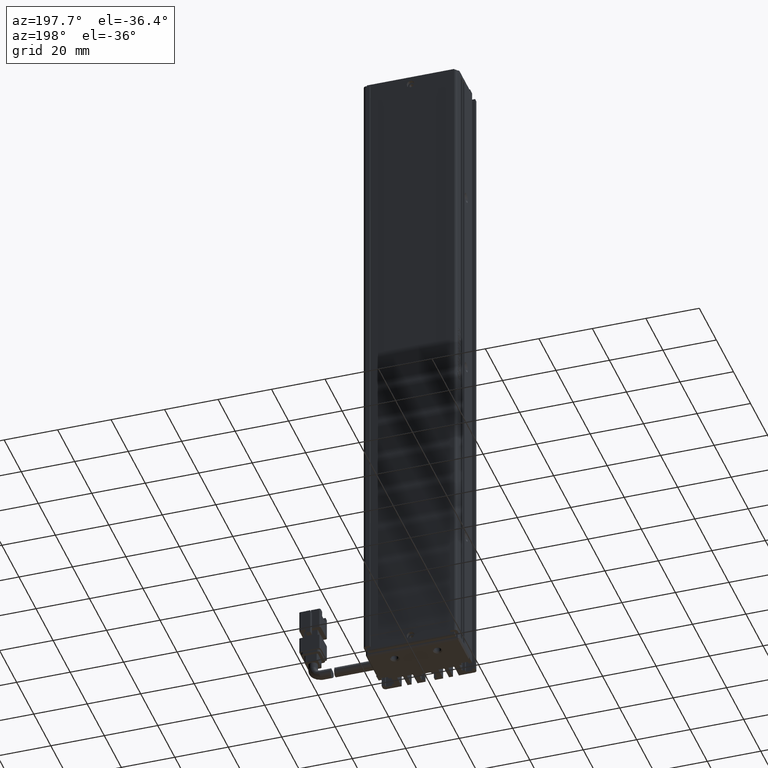
[diagram: clean part render]
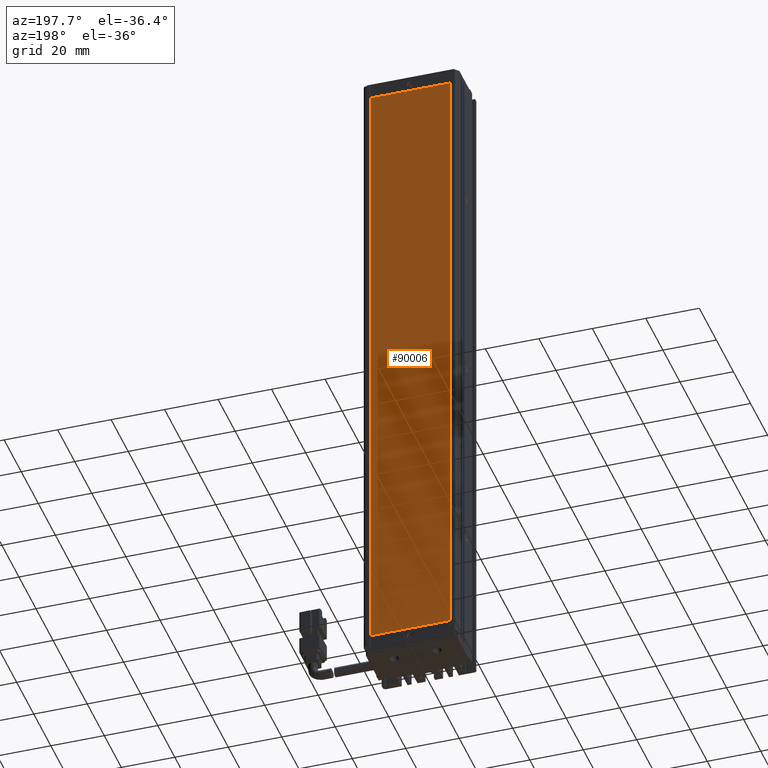
[diagram: same view with one face highlighted and labeled with its STEP entity id]
A machine part, auxiliary view. The second image highlights one B-rep face of the part: STEP entity #90006.
In plain terms, the highlighted planar face has unit normal (0, 1, 0).
Its self-contained STEP definition (entity closure, byte-faithful):
#4326 = DIRECTION ( 'NONE',  ( -1.000000000000000000, 0.0000000000000000000, 0.0000000000000000000 ) ) ;
#5117 = CARTESIAN_POINT ( 'NONE',  ( 25.92537974683542500, 34.29073232304837400, -233.9999728042264200 ) ) ;
#5847 = PLANE ( 'NONE',  #59853 ) ;
#6215 = LINE ( 'NONE', #73059, #31879 ) ;
#9380 = VECTOR ( 'NONE', #4326, 1000.000000000000000 ) ;
#9894 = VERTEX_POINT ( 'NONE', #5117 ) ;
#10557 = ORIENTED_EDGE ( 'NONE', *, *, #24998, .T. ) ;
#10670 = CARTESIAN_POINT ( 'NONE',  ( 25.92537974683542500, 34.29073232304837400, -233.9999728042264200 ) ) ;
#12307 = CARTESIAN_POINT ( 'NONE',  ( 55.84492731756621000, 34.29073232304837400, -115.0000000000000000 ) ) ;
#18924 = VECTOR ( 'NONE', #93599, 1000.000000000000000 ) ;
#19586 = VERTEX_POINT ( 'NONE', #94612 ) ;
#21807 = CARTESIAN_POINT ( 'NONE',  ( 25.92537974683545300, 34.29073232304837400, 4.000027195773581600 ) ) ;
#22882 = VERTEX_POINT ( 'NONE', #62651 ) ;
#22998 = EDGE_CURVE ( 'NONE', #26770, #22882, #40048, .T. ) ;
#24998 = EDGE_CURVE ( 'NONE', #75483, #19586, #61475, .T. ) ;
#26770 = VERTEX_POINT ( 'NONE', #12307 ) ;
#28595 = CARTESIAN_POINT ( 'NONE',  ( 3.278282036302795100E-032, 34.29073232304837400, 4.549530247398007300E-048 ) ) ;
#31879 = VECTOR ( 'NONE', #87457, 1000.000000000000000 ) ;
#32245 = LINE ( 'NONE', #10670, #33386 ) ;
#33386 = VECTOR ( 'NONE', #78217, 1000.000000000000000 ) ;
#40048 = LINE ( 'NONE', #78915, #18924 ) ;
#41602 = VECTOR ( 'NONE', #81254, 1000.000000000000000 ) ;
#50255 = DIRECTION ( 'NONE',  ( 0.0000000000000000000, -0.0000000000000000000, 1.000000000000000000 ) ) ;
#55934 = CARTESIAN_POINT ( 'NONE',  ( 55.92537974683542500, 34.29073232304837400, -233.9999728042264200 ) ) ;
#59853 = AXIS2_PLACEMENT_3D ( 'NONE', #28595, #72691, #50255 ) ;
#61298 = CARTESIAN_POINT ( 'NONE',  ( 25.92537974683545300, 34.29073232304837400, 4.000027195773581600 ) ) ;
#61475 = LINE ( 'NONE', #21807, #41602 ) ;
#62651 = CARTESIAN_POINT ( 'NONE',  ( 55.92537974683542500, 34.29073232304837400, -233.9999728042264200 ) ) ;
#64287 = LINE ( 'NONE', #55934, #9380 ) ;
#66783 = EDGE_CURVE ( 'NONE', #22882, #9894, #64287, .T. ) ;
#69000 = ORIENTED_EDGE ( 'NONE', *, *, #66783, .T. ) ;
#72215 = ORIENTED_EDGE ( 'NONE', *, *, #88406, .T. ) ;
#72691 = DIRECTION ( 'NONE',  ( 0.0000000000000000000, 1.000000000000000000, 0.0000000000000000000 ) ) ;
#73059 = CARTESIAN_POINT ( 'NONE',  ( 55.92537974683545300, 34.29073232304837400, 4.000027195773581600 ) ) ;
#75483 = VERTEX_POINT ( 'NONE', #61298 ) ;
#78217 = DIRECTION ( 'NONE',  ( 1.166200656118862000E-016, 0.0000000000000000000, 1.000000000000000000 ) ) ;
#78915 = CARTESIAN_POINT ( 'NONE',  ( 55.84492731756621000, 34.29073232304837400, -115.0000000000000000 ) ) ;
#81254 = DIRECTION ( 'NONE',  ( 1.000000000000000000, 0.0000000000000000000, 0.0000000000000000000 ) ) ;
#84321 = EDGE_LOOP ( 'NONE', ( #93131, #96663, #69000, #72215, #10557 ) ) ;
#87457 = DIRECTION ( 'NONE',  ( -0.0006760705251825751300, 0.0000000000000000000, -0.9999997714642964200 ) ) ;
#88062 = EDGE_CURVE ( 'NONE', #19586, #26770, #6215, .T. ) ;
#88406 = EDGE_CURVE ( 'NONE', #9894, #75483, #32245, .T. ) ;
#90006 = ADVANCED_FACE ( 'NONE', ( #95814 ), #5847, .T. ) ;
#93131 = ORIENTED_EDGE ( 'NONE', *, *, #88062, .T. ) ;
#93599 = DIRECTION ( 'NONE',  ( 0.0006760708341950601100, 0.0000000000000000000, -0.9999997714640873600 ) ) ;
#94612 = CARTESIAN_POINT ( 'NONE',  ( 55.92537974683545300, 34.29073232304837400, 4.000027195773581600 ) ) ;
#95814 = FACE_OUTER_BOUND ( 'NONE', #84321, .T. ) ;
#96663 = ORIENTED_EDGE ( 'NONE', *, *, #22998, .T. ) ;